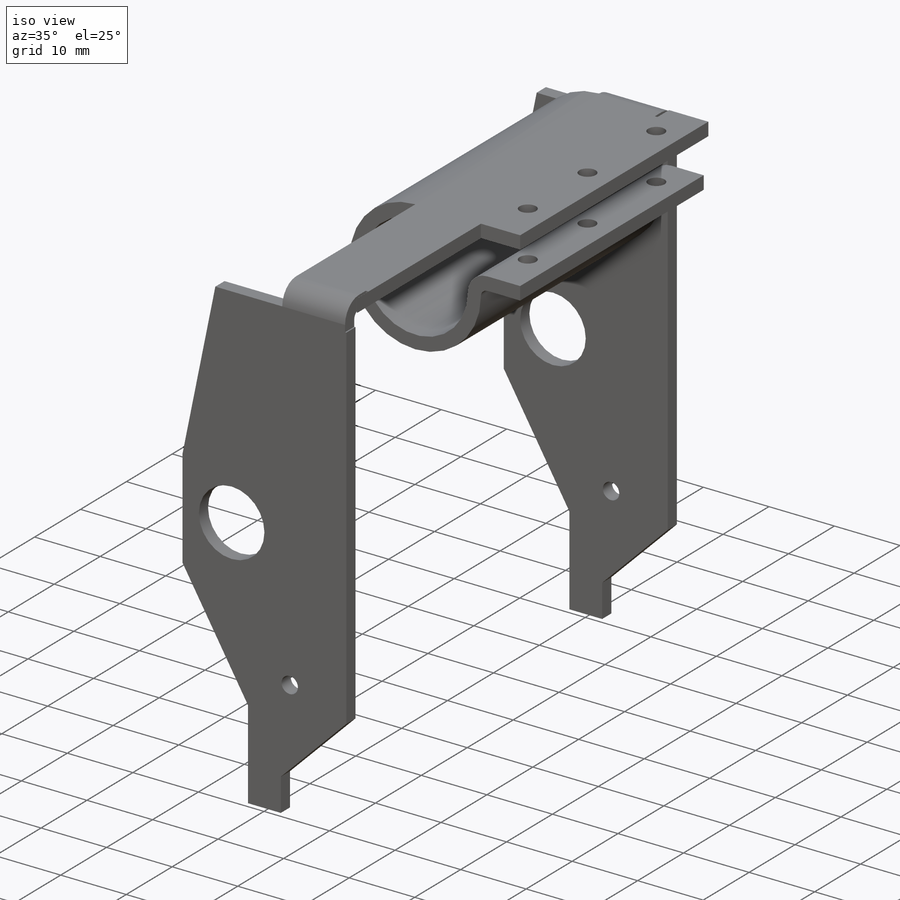
[diagram: iso view]
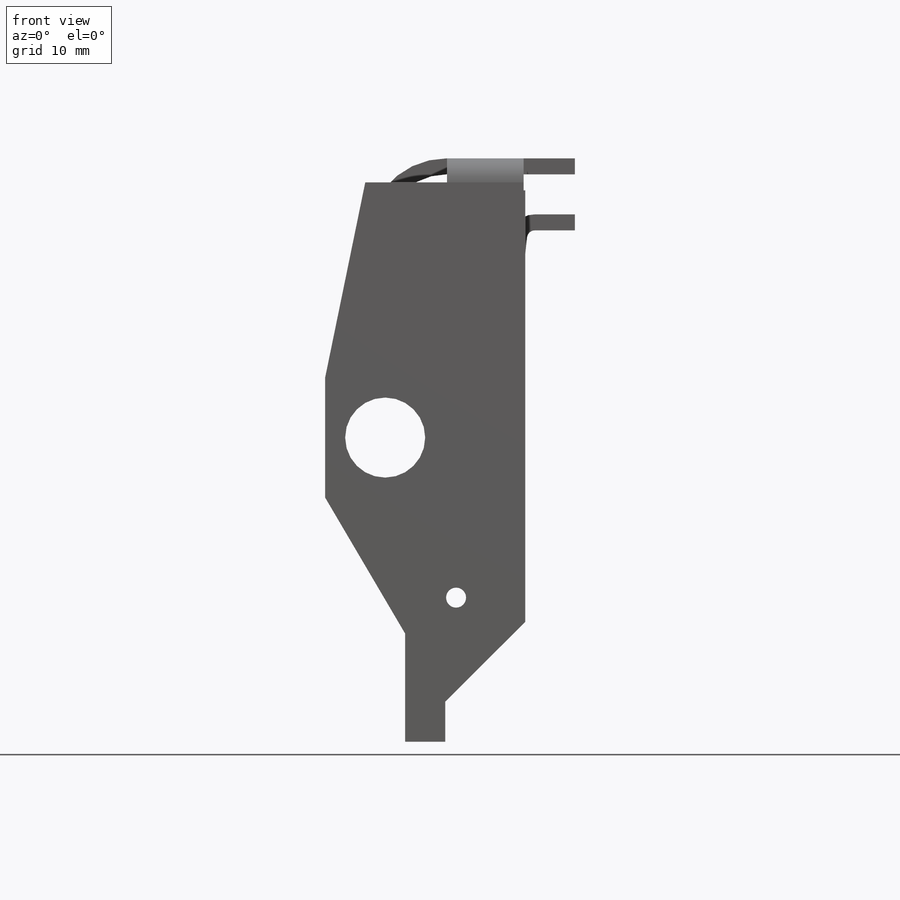
[diagram: front view]
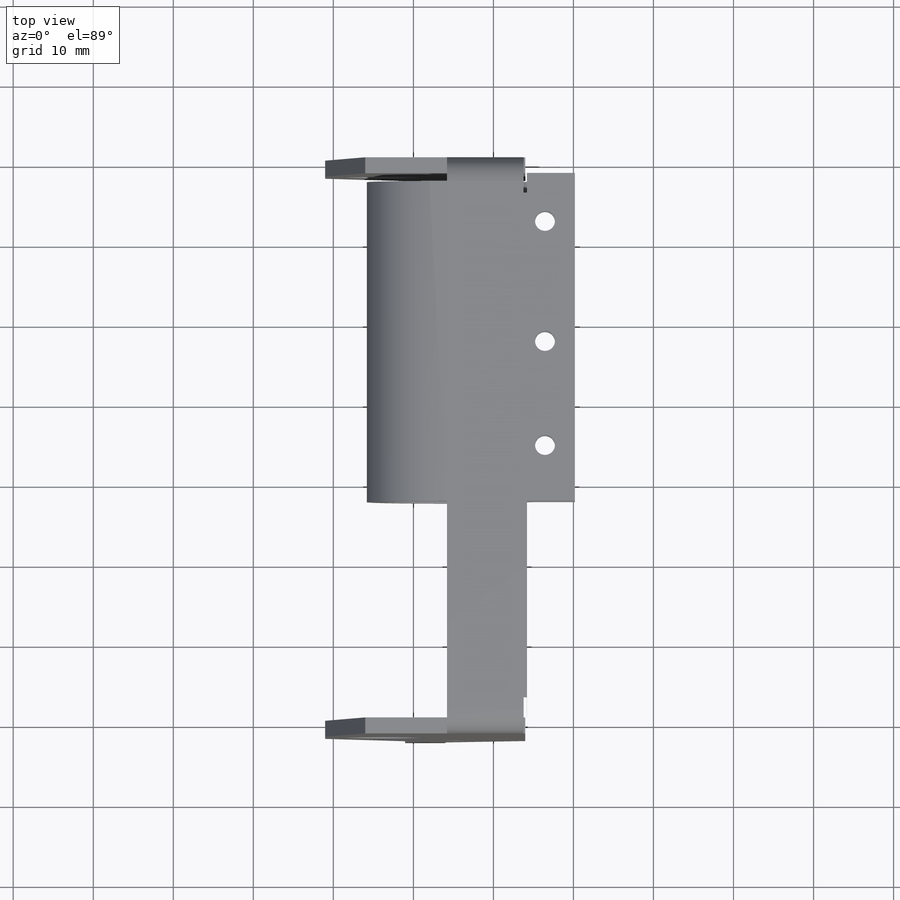
[diagram: top view]
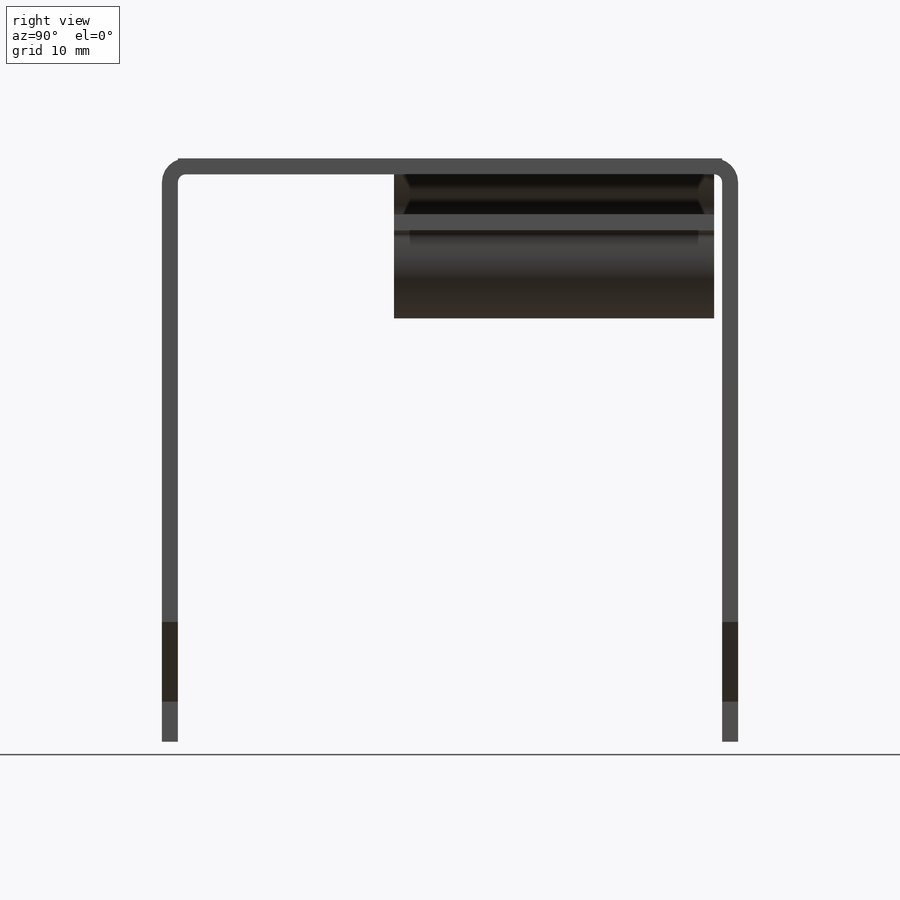
[diagram: right view]
SOLIDWORKS PART (.sldprt)
format: sldprt  version: not decoded by parser v0  size: 584,192 bytes
history: native  units: mm
features: sketch x16, extrude x7, cut_extrude x5, fillet x2, material x1, plane x1, mirror x1, sheet_metal_op x1 + 4 further entries (+13 scaffold rows collapsed; 1 parser-record rows omitted)
feature tree (52):
  scaffold x13  (default folders/planes/origin — collapsed)
  material  "1060 Alloy"
  sketch  "Sketch2"  dims[D1=77.0mm D2=20.0mm]
  extrude  "Boss-Extrude1"  Depth=2mm
  sketch  "Sketch3"  dims[D1=25.5mm D2=15.0mm D3=15.0mm]
  extrude  "Boss-Extrude2"  Depth=2mm
  sketch  "Sketch4"  dims[c1.D1=~5.318808mm c1.D3=~4.755048mm c2.D1=7.5mm c2.D2=7.5mm c2.D3=28.0mm c2.D4=0.0mm]
  extrude  "Boss-Extrude3"  Depth=2mm
  sketch  "Sketch5"
  extrude  "Boss-Extrude4"  Depth=2mm
  sketch  "Sketch6"  dims[c1.D1=~4.710046mm c1.D3=~4.529488mm c1.D5=~2.531184mm c1.D8=5.0mm c2.D1=7.5mm c2.D2=7.5mm c2.D3=26.0mm c2.D4=0.0mm c2.D5=13.0mm c2.D6=1.36mm c2.D7=10.0mm c2.D8=~58.076842mm c3.D8=20.0deg c4.D8=10.0mm]
  cut_extrude  "Cut-Extrude1"  [1 undecoded]
  sketch  "Sketch7"  dims[c1.D1=71.0mm c1.D2=~8.105221mm c2.D1=8.0mm]
  cut_extrude  "Cut-Extrude2"  [1 undecoded]
  sketch  "Sketch8"
  extrude  "Boss-Extrude5"  Depth=2mm
  sketch  "Sketch9"  dims[D1=30.0mm]
  extrude  "Boss-Extrude7"  Depth=34mm
  fillet  "Fillet3"  Radius=1mm
  fillet  "Fillet4"  Radius=1mm
  plane  "Plane2"  Offset=34mm
  mirror  "Mirror9"
  sheet_metal_op  "Sheet-Metal7"  RoundBend4=0
  sketch  "Sketch17"  dims[c1.HemBend1=0.0 c1.D1=8.0mm c1.D4=270.0deg c1.D5=3.0 c1.D8=1.0mm c1.D9=1.0mm c2.D1=8.0mm c2.D9=1.0mm]
  sketch  "Sketch24"  dims[c1.EdgeBend1=0.0 c1.D1=1.0mm c1.D4=90.0deg c1.D5=4.0 c1.D8=1.0mm c1.D9=1.0mm c2.D1=1.0mm c2.D2=500.0mm c2.D3=0.0mm c2.D6=10.0mm c2.D7=10.0mm]
  sketch  "Sketch26"  dims[D1=26.0mm]
  cut_extrude  "Cut-Extrude3"  [1 undecoded]
  sketch  "Sketch27"
  cut_extrude  "Cut-Extrude4"  Depth=2mm
  sketch  "Sketch29"  dims[c1.D2=~1.19338mm c1.D1=1.25mm c2.D2=7.0mm c2.D3=5.0mm c2.D4=4.04mm]
  cut_extrude  "Cut-Extrude5"  Depth=10mm
  sketch  "Sketch31"
  extrude  "Boss-Extrude8"  Depth=2mm
  "Flat-Pattern2"
  sketch  "Bend-Lines2"
  sketch  "Bounding-Box2"
  "Flatten-<RoundBend4>1"
  "Flatten-<HemBend1>1"
  "Flatten-<EdgeBend1>1"
  parser-record x1  (decoder bookkeeping rows leaked as tree rows — omitted from the tree; the rows remain in map.json)
decode coverage: 22 of 32 modeling features carry decoded parameters; 4 rows unclassified (native names shown)
note: ~ marks probable driven/reference dimensions
note: 3 parameter values undecoded
summary: no parameter record found for 3 features
note: suppression state not decoded; provenance and decode notes live in map.json
